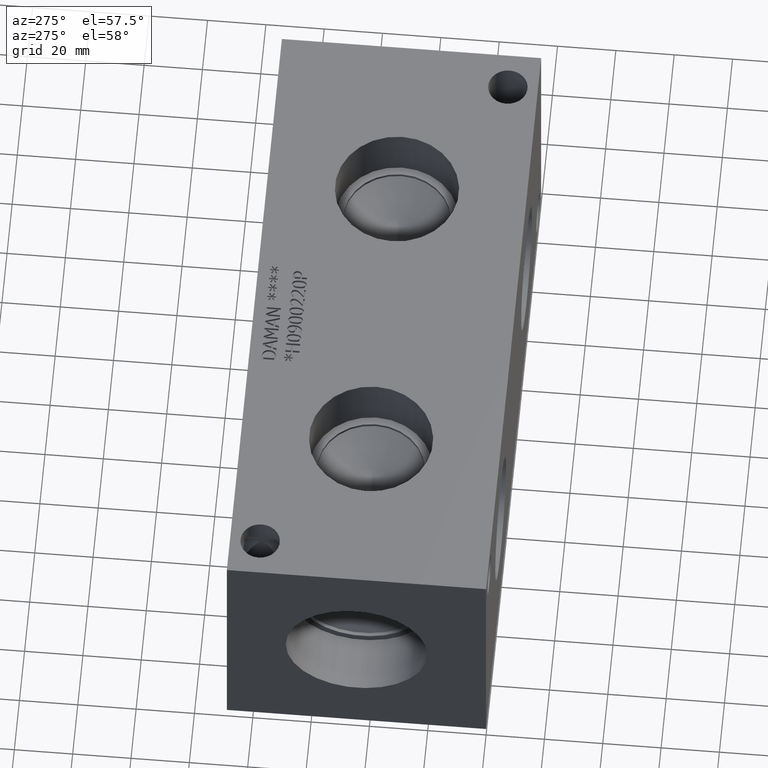
[diagram: clean part render]
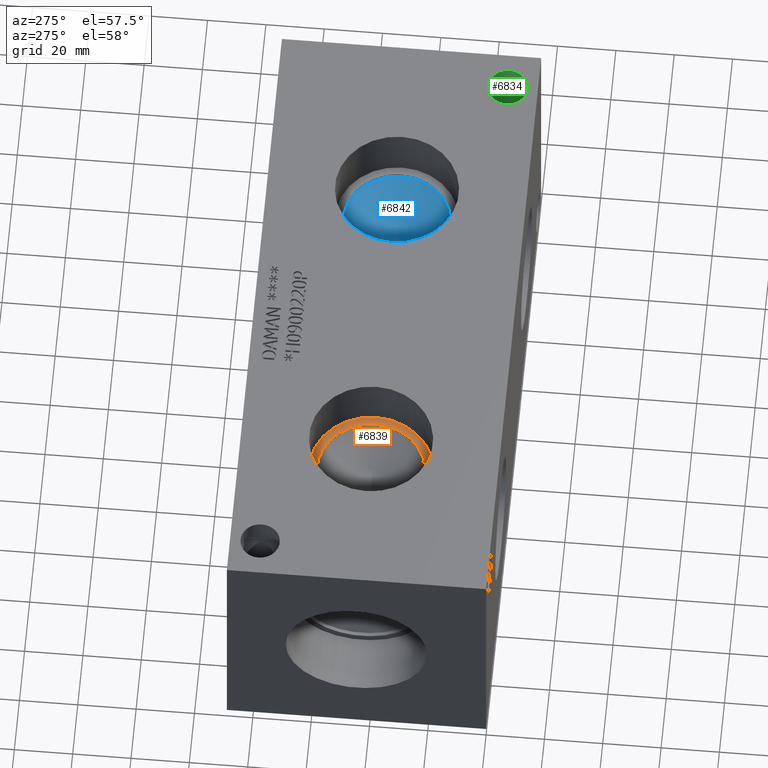
[diagram: same view with three faces highlighted in distinct colors, each labeled with its STEP entity id]
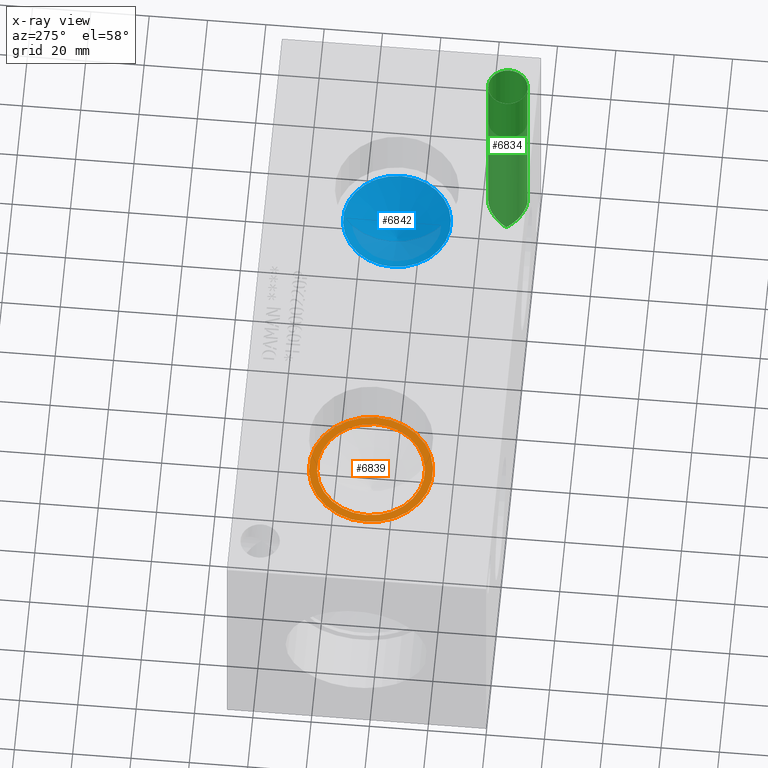
[diagram: x-ray of the same camera — body ghosted, the three highlighted faces saturated]
A machine part, auxiliary view with three faces highlighted in distinct colors.
The next image is the same camera in x-ray (body ghosted, the three faces saturated) — at least one of them is partly hidden behind the body in this view.
Their STEP definitions:

[orange] entity #6839 — the highlighted planar face has unit normal (0, 0, 1).
#92=CIRCLE('',#7147,21.2344);
#93=CIRCLE('',#7148,21.2344);
#94=CIRCLE('',#7149,18.4531);
#453=FACE_BOUND('',#1179,.T.);
#796=FACE_OUTER_BOUND('',#1178,.T.);
#1178=EDGE_LOOP('',(#5908,#5909));
#1179=EDGE_LOOP('',(#5910));
#3158=VERTEX_POINT('',#11677);
#3159=VERTEX_POINT('',#11678);
#3160=VERTEX_POINT('',#11681);
#4088=EDGE_CURVE('',#3158,#3159,#92,.T.);
#4089=EDGE_CURVE('',#3159,#3158,#93,.T.);
#4090=EDGE_CURVE('',#3160,#3160,#94,.T.);
#5908=ORIENTED_EDGE('',*,*,#4088,.T.);
#5909=ORIENTED_EDGE('',*,*,#4089,.T.);
#5910=ORIENTED_EDGE('',*,*,#4090,.F.);
#6200=PLANE('',#7146);
#6839=ADVANCED_FACE('',(#796,#453),#6200,.T.);
#7146=AXIS2_PLACEMENT_3D('',#11676,#8382,#8383);
#7147=AXIS2_PLACEMENT_3D('',#11679,#8384,#8385);
#7148=AXIS2_PLACEMENT_3D('',#11680,#8386,#8387);
#7149=AXIS2_PLACEMENT_3D('',#11682,#8388,#8389);
#8382=DIRECTION('center_axis',(0.,0.,1.));
#8383=DIRECTION('ref_axis',(1.,0.,0.));
#8384=DIRECTION('center_axis',(0.,0.,1.));
#8385=DIRECTION('ref_axis',(1.,0.,0.));
#8386=DIRECTION('center_axis',(0.,0.,1.));
#8387=DIRECTION('ref_axis',(1.,0.,0.));
#8388=DIRECTION('center_axis',(0.,0.,1.));
#8389=DIRECTION('ref_axis',(1.,0.,0.));
#11676=CARTESIAN_POINT('Origin',(57.15,44.45,69.3928));
#11677=CARTESIAN_POINT('',(78.3844,44.45,69.3928));
#11678=CARTESIAN_POINT('',(35.9156,44.45,69.3928));
#11679=CARTESIAN_POINT('Origin',(57.15,44.45,69.3928));
#11680=CARTESIAN_POINT('Origin',(57.15,44.45,69.3928));
#11681=CARTESIAN_POINT('',(38.6969,44.45,69.3928));
#11682=CARTESIAN_POINT('Origin',(57.15,44.45,69.3928));

[blue] entity #6842 — the highlighted conical surface has half-angle 60 deg.
#47=CONICAL_SURFACE('',#7152,9.22655,1.0471975511966);
#95=CIRCLE('',#7153,18.4531);
#96=CIRCLE('',#7154,18.4531);
#799=FACE_OUTER_BOUND('',#1182,.T.);
#1182=EDGE_LOOP('',(#5922,#5923,#5924,#5925));
#1860=LINE('',#11692,#2528);
#2528=VECTOR('',#8400,9.22655);
#3161=VERTEX_POINT('',#11688);
#3162=VERTEX_POINT('',#11689);
#3163=VERTEX_POINT('',#11691);
#4093=EDGE_CURVE('',#3161,#3162,#95,.T.);
#4094=EDGE_CURVE('',#3162,#3163,#1860,.T.);
#4095=EDGE_CURVE('',#3162,#3161,#96,.T.);
#5922=ORIENTED_EDGE('',*,*,#4093,.T.);
#5923=ORIENTED_EDGE('',*,*,#4094,.T.);
#5924=ORIENTED_EDGE('',*,*,#4094,.F.);
#5925=ORIENTED_EDGE('',*,*,#4095,.T.);
#6842=ADVANCED_FACE('',(#799),#47,.F.);
#7152=AXIS2_PLACEMENT_3D('',#11687,#8396,#8397);
#7153=AXIS2_PLACEMENT_3D('',#11690,#8398,#8399);
#7154=AXIS2_PLACEMENT_3D('',#11693,#8401,#8402);
#8396=DIRECTION('center_axis',(0.,0.,1.));
#8397=DIRECTION('ref_axis',(1.,0.,0.));
#8398=DIRECTION('center_axis',(0.,0.,1.));
#8399=DIRECTION('ref_axis',(1.,0.,0.));
#8400=DIRECTION('',(0.866025403784439,1.06057523872491E-16,-0.5));
#8401=DIRECTION('center_axis',(0.,0.,1.));
#8402=DIRECTION('ref_axis',(1.,0.,0.));
#11687=CARTESIAN_POINT('Origin',(158.75,44.45,63.0004588738085));
#11688=CARTESIAN_POINT('',(177.2031,44.45,68.32741));
#11689=CARTESIAN_POINT('',(140.2969,44.45,68.32741));
#11690=CARTESIAN_POINT('Origin',(158.75,44.45,68.32741));
#11691=CARTESIAN_POINT('',(158.75,44.45,57.6735077476169));
#11692=CARTESIAN_POINT('',(149.52345,44.45,63.0004588738085));
#11693=CARTESIAN_POINT('Origin',(158.75,44.45,68.32741));

[green] entity #6834 — the highlighted cylindrical surface (bore or boss wall) has radius 6.7437 mm, axis along (0, 0, 1).
#14=ELLIPSE('',#7126,9.53703200057544,6.7437);
#17=ELLIPSE('',#7130,9.53703200057544,6.7437);
#32=CYLINDRICAL_SURFACE('',#7132,6.7437);
#48=CIRCLE('',#7001,6.7437);
#49=CIRCLE('',#7002,6.7437);
#791=FACE_OUTER_BOUND('',#1173,.T.);
#1173=EDGE_LOOP('',(#5881,#5882,#5883,#5884,#5885,#5886));
#1853=LINE('',#11650,#2521);
#2521=VECTOR('',#8351,6.7437);
#2807=VERTEX_POINT('',#9356);
#2808=VERTEX_POINT('',#9357);
#3147=VERTEX_POINT('',#11638);
#3148=VERTEX_POINT('',#11640);
#3570=EDGE_CURVE('',#2807,#2808,#48,.T.);
#3571=EDGE_CURVE('',#2808,#2807,#49,.T.);
#4068=EDGE_CURVE('',#3148,#3147,#14,.T.);
#4071=EDGE_CURVE('',#3147,#3148,#17,.T.);
#4074=EDGE_CURVE('',#2808,#3147,#1853,.T.);
#5881=ORIENTED_EDGE('',*,*,#3570,.F.);
#5882=ORIENTED_EDGE('',*,*,#3571,.F.);
#5883=ORIENTED_EDGE('',*,*,#4074,.T.);
#5884=ORIENTED_EDGE('',*,*,#4071,.T.);
#5885=ORIENTED_EDGE('',*,*,#4068,.T.);
#5886=ORIENTED_EDGE('',*,*,#4074,.F.);
#6834=ADVANCED_FACE('',(#791),#32,.F.);
#7001=AXIS2_PLACEMENT_3D('',#9358,#7820,#7821);
#7002=AXIS2_PLACEMENT_3D('',#9359,#7822,#7823);
#7126=AXIS2_PLACEMENT_3D('',#11641,#8336,#8337);
#7130=AXIS2_PLACEMENT_3D('',#11645,#8344,#8345);
#7132=AXIS2_PLACEMENT_3D('',#11649,#8349,#8350);
#7820=DIRECTION('center_axis',(0.,0.,-1.));
#7821=DIRECTION('ref_axis',(1.,0.,0.));
#7822=DIRECTION('center_axis',(0.,0.,-1.));
#7823=DIRECTION('ref_axis',(1.,0.,0.));
#8336=DIRECTION('center_axis',(0.,-0.707106781186547,-0.707106781186548));
#8337=DIRECTION('ref_axis',(0.,-0.707106781186548,0.707106781186547));
#8344=DIRECTION('center_axis',(0.,0.707106781186548,-0.707106781186547));
#8345=DIRECTION('ref_axis',(0.,0.707106781186547,0.707106781186548));
#8349=DIRECTION('center_axis',(0.,0.,1.));
#8350=DIRECTION('ref_axis',(1.,0.,0.));
#8351=DIRECTION('',(0.,0.,-1.));
#9356=CARTESIAN_POINT('',(209.9437,10.3124,88.9));
#9357=CARTESIAN_POINT('',(196.4563,10.3124,88.9));
#9358=CARTESIAN_POINT('Origin',(203.2,10.3124,88.9));
#9359=CARTESIAN_POINT('Origin',(203.2,10.3124,88.9));
#11638=CARTESIAN_POINT('',(196.4563,10.3124,10.3124));
#11640=CARTESIAN_POINT('',(209.9437,10.3124,10.3124));
#11641=CARTESIAN_POINT('Origin',(203.2,10.3124,10.3124));
#11645=CARTESIAN_POINT('Origin',(203.2,10.3124,10.3124));
#11649=CARTESIAN_POINT('Origin',(203.2,10.3124,-160.938407775906));
#11650=CARTESIAN_POINT('',(196.4563,10.3124,-160.938407775906));